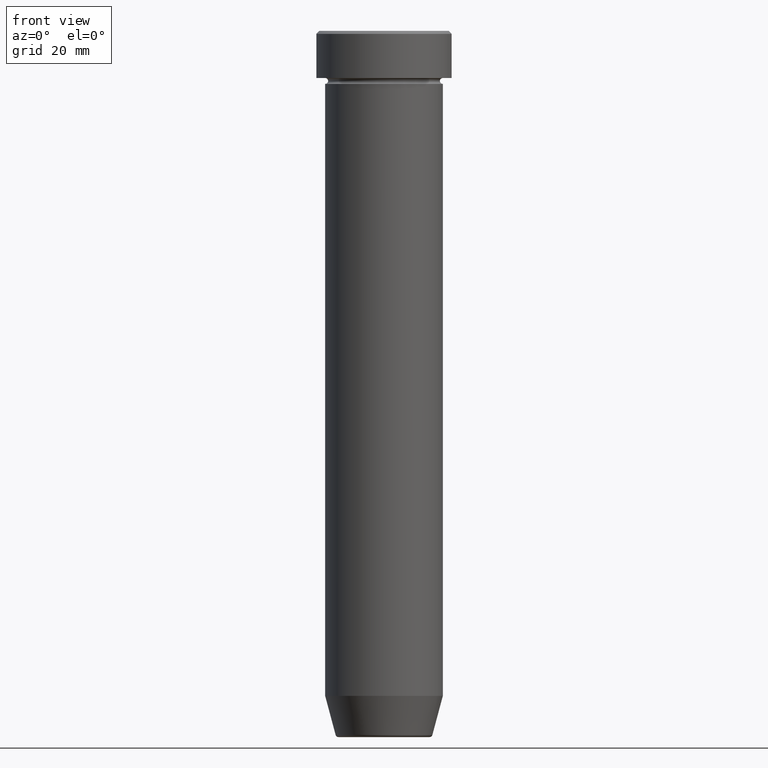
[diagram: clean part render]
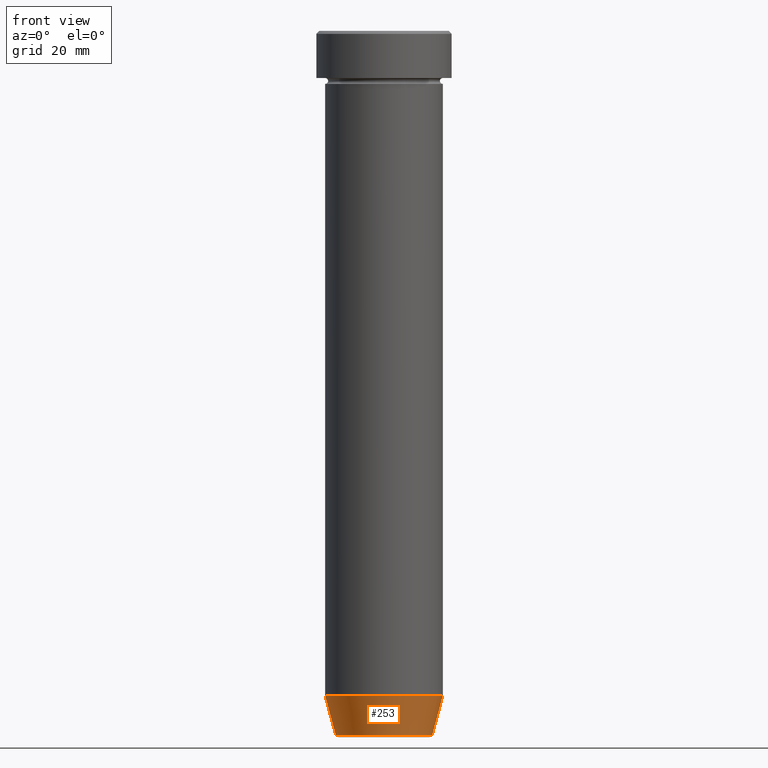
[diagram: same view with one face highlighted and labeled with its STEP entity id]
A machine part, front view. The second image highlights one B-rep face of the part: STEP entity #253.
In plain terms, the highlighted conical surface has half-angle 15 deg.
Its self-contained STEP definition (entity closure, byte-faithful):
#15 = ORIENTED_EDGE ( 'NONE', *, *, #165, .T. ) ;
#24 = DIRECTION ( 'NONE',  ( -0.000000000000000000, -0.000000000000000000, 1.000000000000000000 ) ) ;
#39 = DIRECTION ( 'NONE',  ( -0.000000000000000000, -0.000000000000000000, 1.000000000000000000 ) ) ;
#60 = CIRCLE ( 'NONE', #575, 9.999999999999998224 ) ;
#80 = DIRECTION ( 'NONE',  ( 0.2588190451025214611, 0.000000000000000000, 0.9659258262890679791 ) ) ;
#116 = CARTESIAN_POINT ( 'NONE',  ( 0.000000000000000000, 0.000000000000000000, -112.9999999999999858 ) ) ;
#127 = EDGE_CURVE ( 'NONE', #368, #500, #60, .T. ) ;
#135 = CARTESIAN_POINT ( 'NONE',  ( -9.999999999999998224, 1.224646799147353059E-15, -112.9999999999999858 ) ) ;
#164 = DIRECTION ( 'NONE',  ( -0.2588190451025214611, 3.169619151431774186E-17, 0.9659258262890679791 ) ) ;
#165 = EDGE_CURVE ( 'NONE', #523, #212, #311, .T. ) ;
#212 = VERTEX_POINT ( 'NONE', #407 ) ;
#215 = DIRECTION ( 'NONE',  ( 1.000000000000000000, 0.000000000000000000, 0.000000000000000000 ) ) ;
#235 = VECTOR ( 'NONE', #80, 1000.000000000000114 ) ;
#249 = CARTESIAN_POINT ( 'NONE',  ( -8.124355652982131915, 9.949466145559272639E-16, -120.0000000000000000 ) ) ;
#253 = ADVANCED_FACE ( 'NONE', ( #395 ), #593, .T. ) ;
#260 = DIRECTION ( 'NONE',  ( -1.000000000000000000, 0.000000000000000000, 0.000000000000000000 ) ) ;
#298 = DIRECTION ( 'NONE',  ( 1.000000000000000000, 0.000000000000000000, 0.000000000000000000 ) ) ;
#299 = CARTESIAN_POINT ( 'NONE',  ( 8.124355652982131915, 0.000000000000000000, -120.0000000000000000 ) ) ;
#301 = AXIS2_PLACEMENT_3D ( 'NONE', #432, #24, #260 ) ;
#311 = CIRCLE ( 'NONE', #301, 8.223655072137185940 ) ;
#317 = EDGE_CURVE ( 'NONE', #212, #500, #472, .T. ) ;
#324 = CARTESIAN_POINT ( 'NONE',  ( 9.999999999999998224, 0.000000000000000000, -112.9999999999999858 ) ) ;
#329 = AXIS2_PLACEMENT_3D ( 'NONE', #583, #441, #215 ) ;
#368 = VERTEX_POINT ( 'NONE', #135 ) ;
#390 = ORIENTED_EDGE ( 'NONE', *, *, #559, .F. ) ;
#395 = FACE_OUTER_BOUND ( 'NONE', #548, .T. ) ;
#407 = CARTESIAN_POINT ( 'NONE',  ( 8.223655072137185940, 0.000000000000000000, -119.6294095225512564 ) ) ;
#415 = ORIENTED_EDGE ( 'NONE', *, *, #317, .T. ) ;
#432 = CARTESIAN_POINT ( 'NONE',  ( 0.000000000000000000, 0.000000000000000000, -119.6294095225512564 ) ) ;
#441 = DIRECTION ( 'NONE',  ( -0.000000000000000000, -0.000000000000000000, 1.000000000000000000 ) ) ;
#466 = LINE ( 'NONE', #249, #577 ) ;
#472 = LINE ( 'NONE', #299, #235 ) ;
#500 = VERTEX_POINT ( 'NONE', #324 ) ;
#508 = CARTESIAN_POINT ( 'NONE',  ( -8.223655072137185940, 1.115877042642911659E-15, -119.6294095225512564 ) ) ;
#523 = VERTEX_POINT ( 'NONE', #508 ) ;
#548 = EDGE_LOOP ( 'NONE', ( #390, #15, #415, #561 ) ) ;
#559 = EDGE_CURVE ( 'NONE', #523, #368, #466, .T. ) ;
#561 = ORIENTED_EDGE ( 'NONE', *, *, #127, .F. ) ;
#575 = AXIS2_PLACEMENT_3D ( 'NONE', #116, #39, #298 ) ;
#577 = VECTOR ( 'NONE', #164, 1000.000000000000114 ) ;
#583 = CARTESIAN_POINT ( 'NONE',  ( 0.000000000000000000, 0.000000000000000000, -120.0000000000000000 ) ) ;
#593 = CONICAL_SURFACE ( 'NONE', #329, 8.124355652982131915, 0.2617993877991502405 ) ;